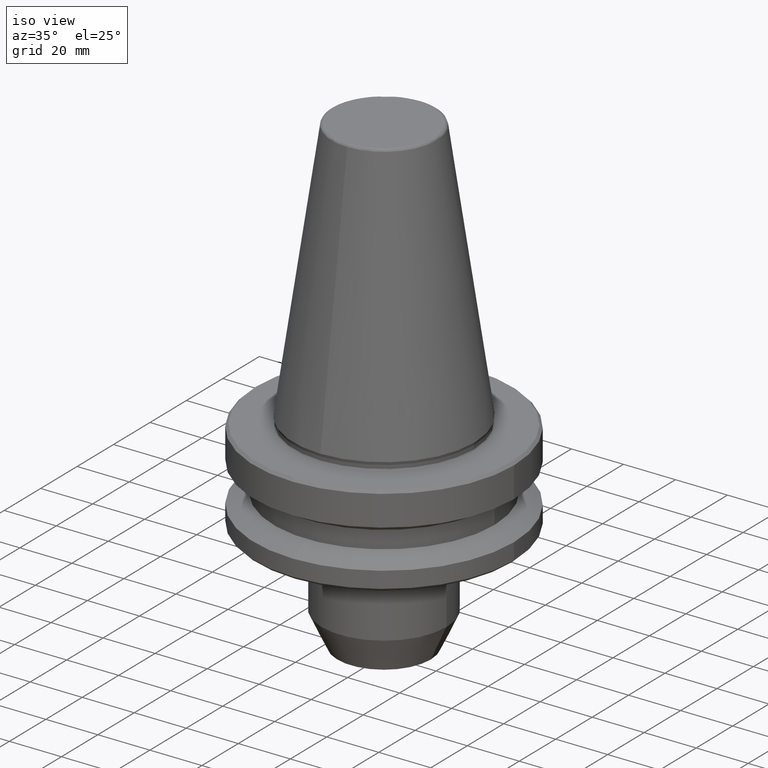
[diagram: clean part render]
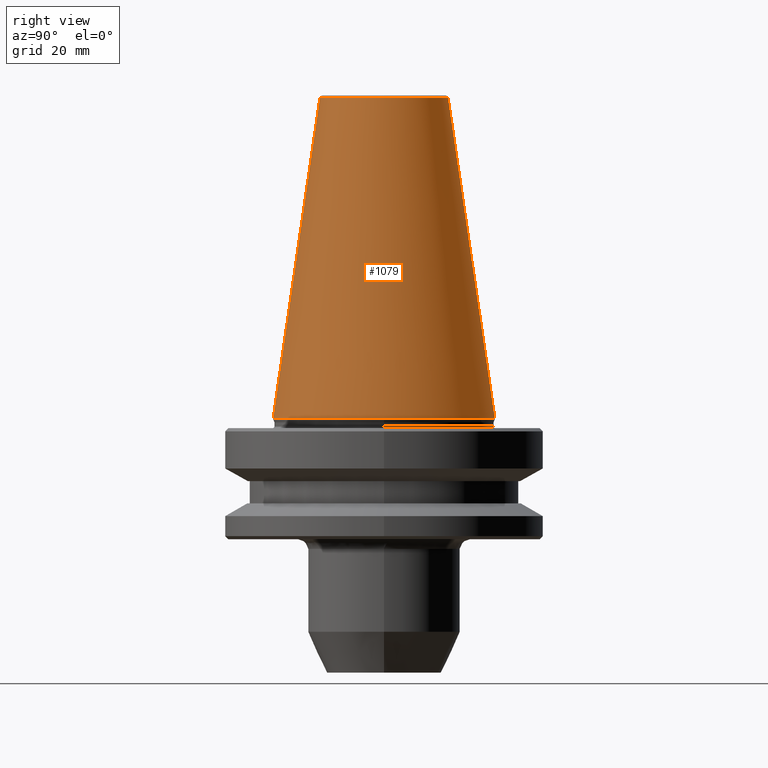
[diagram: tour spotlight — one face highlighted and labeled with its STEP entity id]
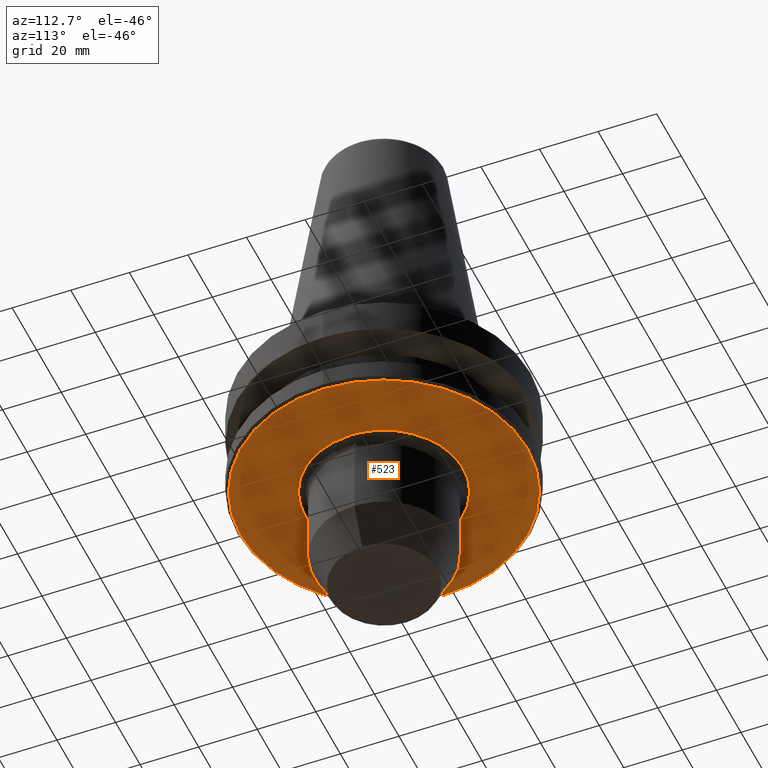
[diagram: tour spotlight — one face highlighted and labeled with its STEP entity id]
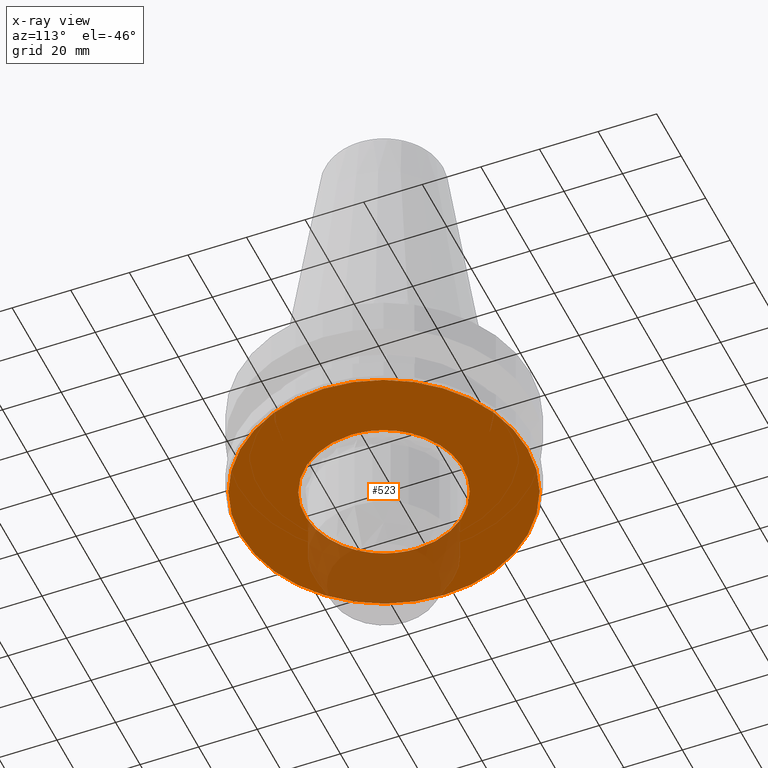
[diagram: x-ray of the same camera — body ghosted, this tour face saturated]
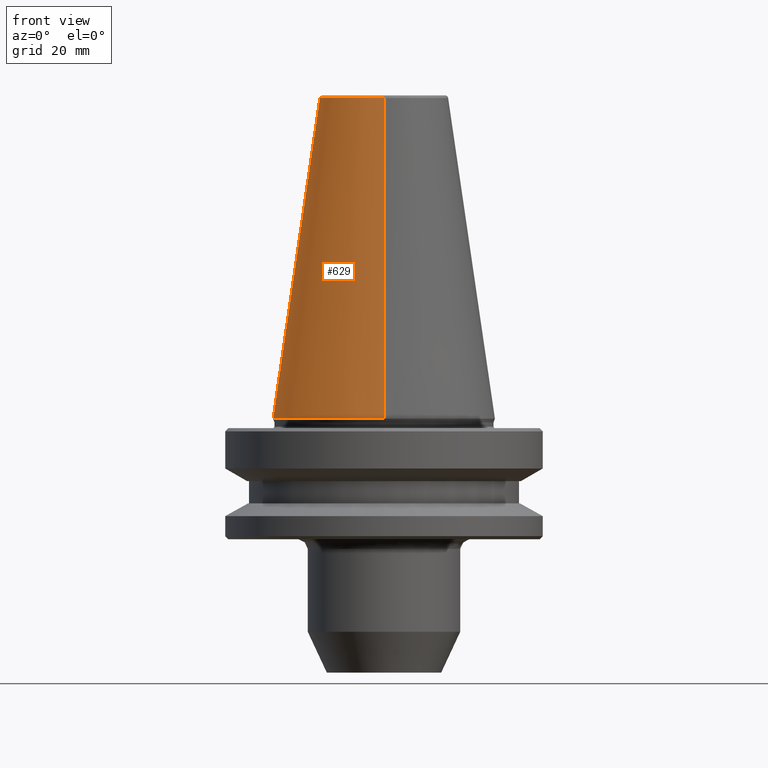
[diagram: tour spotlight — one face highlighted and labeled with its STEP entity id]
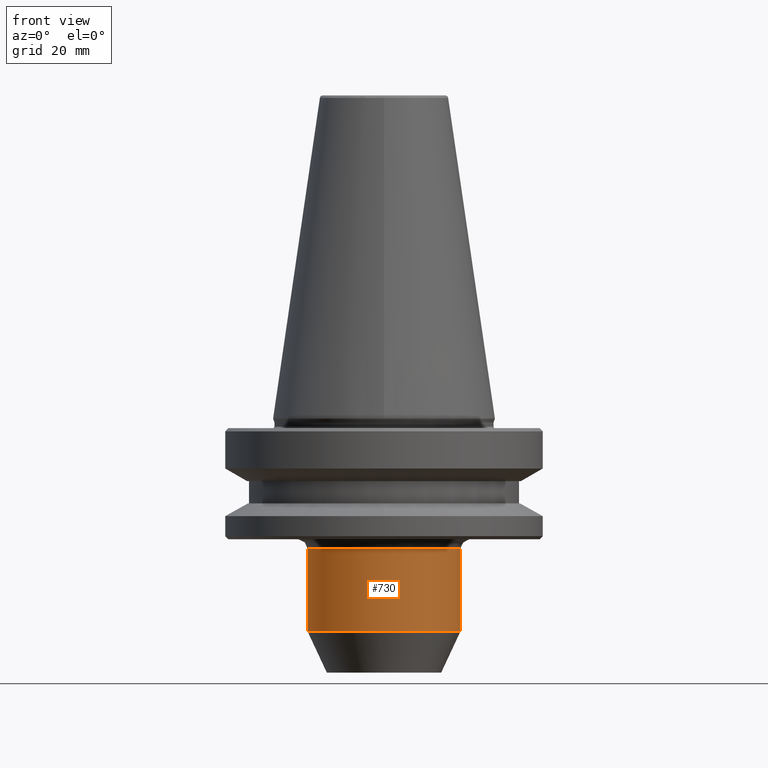
[diagram: tour spotlight — one face highlighted and labeled with its STEP entity id]
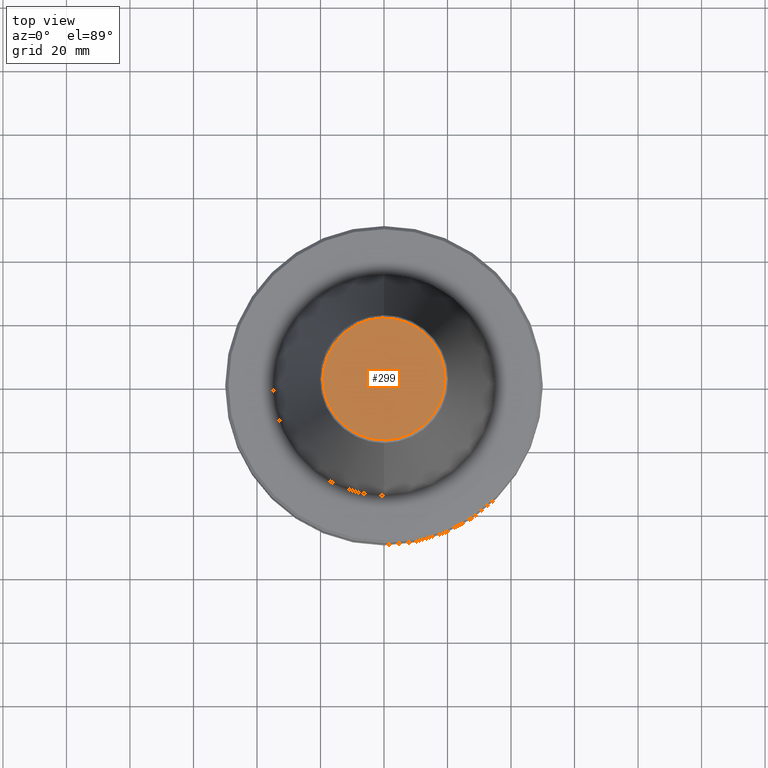
[diagram: tour spotlight — one face highlighted and labeled with its STEP entity id]
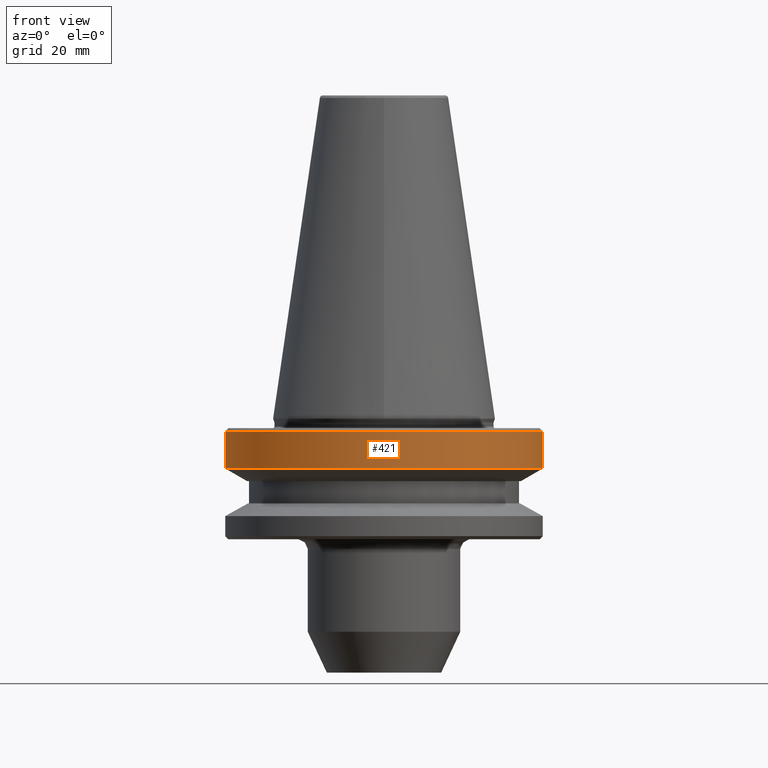
[diagram: tour spotlight — one face highlighted and labeled with its STEP entity id]
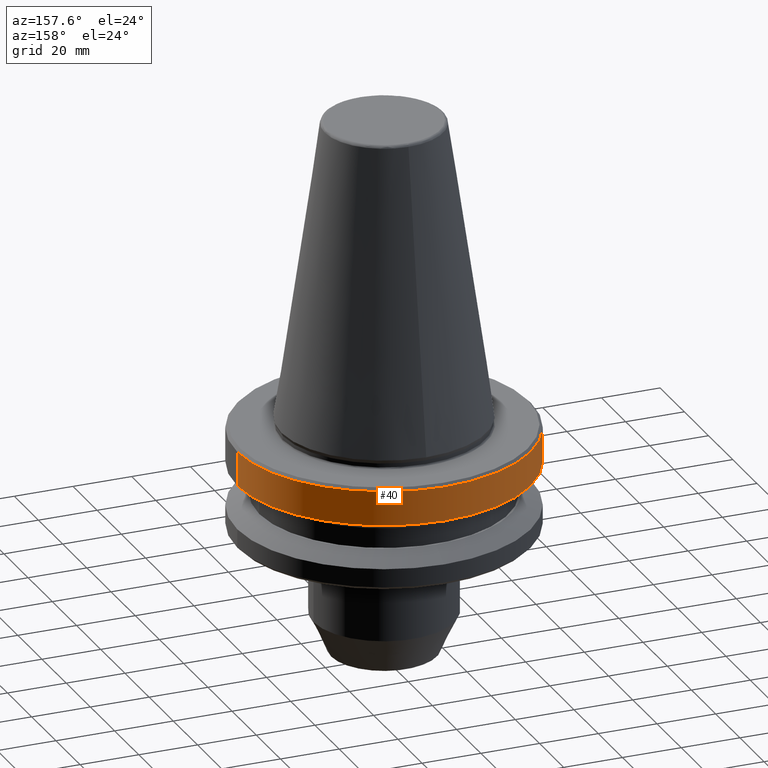
[diagram: tour spotlight — one face highlighted and labeled with its STEP entity id]
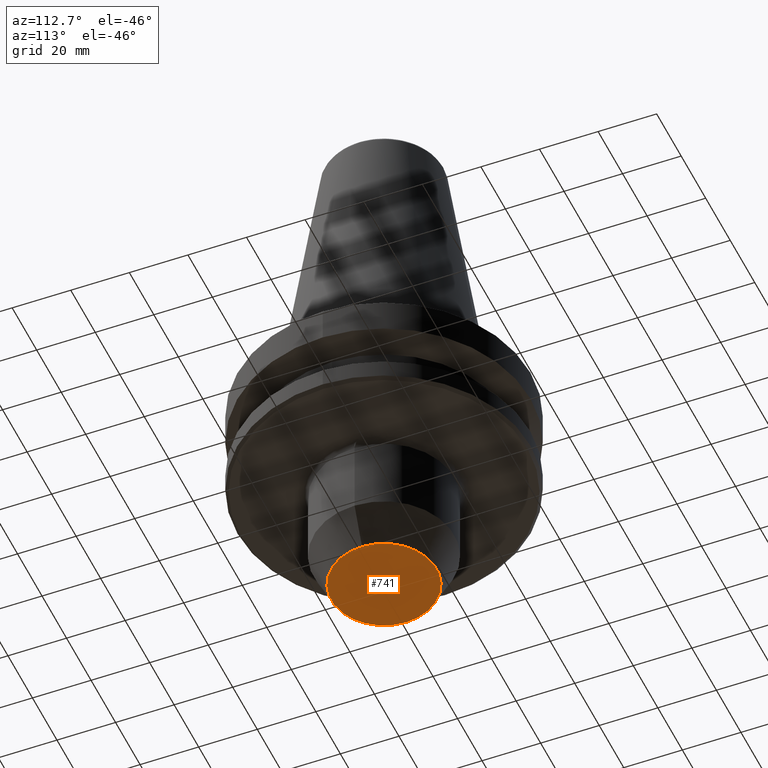
[diagram: tour spotlight — one face highlighted and labeled with its STEP entity id]
A machine part: a face-by-face anatomy tour. The part has 36 B-rep faces; the first image is the clean iso view, then the 8 largest visible faces are spotlighted one at a time (largest first), each with its STEP entity span.

Face 1 — right view, entity #1079. In plain terms, the highlighted conical surface has half-angle 8.297 deg.
Definition (entity closure, byte-faithful):
#10 = AXIS2_PLACEMENT_3D ( 'NONE', #1312, #1203, #546 ) ;
#18 = VERTEX_POINT ( 'NONE', #1149 ) ;
#32 = AXIS2_PLACEMENT_3D ( 'NONE', #498, #495, #493 ) ;
#70 = DIRECTION ( 'NONE',  ( 1.767266086135278000E-017, -0.1443082272673000500, -0.9895327864921754600 ) ) ;
#71 = ORIENTED_EDGE ( 'NONE', *, *, #161, .T. ) ;
#81 = DIRECTION ( 'NONE',  ( -0.0000000000000000000, -0.0000000000000000000, 1.000000000000000000 ) ) ;
#86 = EDGE_CURVE ( 'NONE', #1277, #1318, #1330, .T. ) ;
#93 = EDGE_CURVE ( 'NONE', #1282, #1182, #278, .T. ) ;
#122 = ORIENTED_EDGE ( 'NONE', *, *, #976, .T. ) ;
#161 = EDGE_CURVE ( 'NONE', #18, #1277, #1290, .T. ) ;
#278 = CIRCLE ( 'NONE', #531, 34.92499999999999700 ) ;
#283 = CARTESIAN_POINT ( 'NONE',  ( 4.277078946022130900E-015, -34.92499999999999700, -1.235024670767087800E-014 ) ) ;
#322 = ORIENTED_EDGE ( 'NONE', *, *, #1271, .F. ) ;
#378 = CIRCLE ( 'NONE', #32, 34.92499999999999700 ) ;
#389 = AXIS2_PLACEMENT_3D ( 'NONE', #820, #818, #815 ) ;
#434 = CARTESIAN_POINT ( 'NONE',  ( 4.277078946022130900E-015, -34.92499999999999700, 0.0000000000000000000 ) ) ;
#491 = CARTESIAN_POINT ( 'NONE',  ( 34.92499999999999700, 0.0000000000000000000, 0.0000000000000000000 ) ) ;
#493 = DIRECTION ( 'NONE',  ( -1.000000000000000000, 0.0000000000000000000, -3.611427007686981100E-016 ) ) ;
#495 = DIRECTION ( 'NONE',  ( -0.0000000000000000000, -0.0000000000000000000, 1.000000000000000000 ) ) ;
#498 = CARTESIAN_POINT ( 'NONE',  ( 0.0000000000000000000, 0.0000000000000000000, 0.0000000000000000000 ) ) ;
#506 = CARTESIAN_POINT ( 'NONE',  ( 3.375666405914009500E-015, -20.20381605152244500, 100.9443082272672700 ) ) ;
#531 = AXIS2_PLACEMENT_3D ( 'NONE', #685, #81, #1169 ) ;
#546 = DIRECTION ( 'NONE',  ( -1.000000000000000000, 0.0000000000000000000, 0.0000000000000000000 ) ) ;
#547 = DIRECTION ( 'NONE',  ( 0.0000000000000000000, 0.1443082272673000500, -0.9895327864921754600 ) ) ;
#556 = CARTESIAN_POINT ( 'NONE',  ( 0.0000000000000000000, 34.92499999999999700, -1.235024670767087400E-014 ) ) ;
#620 = CARTESIAN_POINT ( 'NONE',  ( 0.0000000000000000000, 34.92499999999999700, 0.0000000000000000000 ) ) ;
#623 = EDGE_LOOP ( 'NONE', ( #122, #71, #1170, #1007, #1331, #322 ) ) ;
#685 = CARTESIAN_POINT ( 'NONE',  ( 0.0000000000000000000, 0.0000000000000000000, 0.0000000000000000000 ) ) ;
#754 = CARTESIAN_POINT ( 'NONE',  ( 0.0000000000000000000, 20.20381605152244500, 100.9443082272672700 ) ) ;
#767 = DIRECTION ( 'NONE',  ( 0.0000000000000000000, 1.000000000000000000, 4.411578970679424000E-032 ) ) ;
#768 = CARTESIAN_POINT ( 'NONE',  ( 0.0000000000000000000, 0.0000000000000000000, -1.235024670767087600E-014 ) ) ;
#781 = DIRECTION ( 'NONE',  ( 0.0000000000000000000, 2.205789485339712300E-032, -1.000000000000000000 ) ) ;
#815 = DIRECTION ( 'NONE',  ( -1.000000000000000000, 0.0000000000000000000, 0.0000000000000000000 ) ) ;
#818 = DIRECTION ( 'NONE',  ( 0.0000000000000000000, 0.0000000000000000000, -1.000000000000000000 ) ) ;
#820 = CARTESIAN_POINT ( 'NONE',  ( 0.0000000000000000000, 0.0000000000000000000, 100.9443082272672700 ) ) ;
#934 = VECTOR ( 'NONE', #547, 1000.000000000000000 ) ;
#952 = CONICAL_SURFACE ( 'NONE', #1146, 34.92499999999999700, 0.1448138465474120300 ) ;
#967 = LINE ( 'NONE', #556, #934 ) ;
#976 = EDGE_CURVE ( 'NONE', #1081, #18, #1051, .T. ) ;
#1007 = ORIENTED_EDGE ( 'NONE', *, *, #1270, .T. ) ;
#1028 = VECTOR ( 'NONE', #70, 1000.000000000000000 ) ;
#1051 = CIRCLE ( 'NONE', #389, 20.20381605152244500 ) ;
#1079 = ADVANCED_FACE ( 'NONE', ( #1296 ), #952, .T. ) ;
#1081 = VERTEX_POINT ( 'NONE', #754 ) ;
#1146 = AXIS2_PLACEMENT_3D ( 'NONE', #768, #781, #767 ) ;
#1149 = CARTESIAN_POINT ( 'NONE',  ( 20.20381605152244500, 0.0000000000000000000, 100.9443082272672700 ) ) ;
#1169 = DIRECTION ( 'NONE',  ( -1.000000000000000000, 0.0000000000000000000, -3.611427007686981100E-016 ) ) ;
#1170 = ORIENTED_EDGE ( 'NONE', *, *, #86, .T. ) ;
#1182 = VERTEX_POINT ( 'NONE', #620 ) ;
#1203 = DIRECTION ( 'NONE',  ( 0.0000000000000000000, 0.0000000000000000000, -1.000000000000000000 ) ) ;
#1270 = EDGE_CURVE ( 'NONE', #1318, #1282, #378, .T. ) ;
#1271 = EDGE_CURVE ( 'NONE', #1081, #1182, #967, .T. ) ;
#1277 = VERTEX_POINT ( 'NONE', #506 ) ;
#1282 = VERTEX_POINT ( 'NONE', #491 ) ;
#1290 = CIRCLE ( 'NONE', #10, 20.20381605152244500 ) ;
#1296 = FACE_OUTER_BOUND ( 'NONE', #623, .T. ) ;
#1312 = CARTESIAN_POINT ( 'NONE',  ( 0.0000000000000000000, 0.0000000000000000000, 100.9443082272672700 ) ) ;
#1318 = VERTEX_POINT ( 'NONE', #434 ) ;
#1330 = LINE ( 'NONE', #283, #1028 ) ;
#1331 = ORIENTED_EDGE ( 'NONE', *, *, #93, .T. ) ;

Face 2 — auxiliary view, entity #523. An x-ray twin of the same camera follows (body ghosted, this face saturated) — the face is partly hidden behind the body. In plain terms, the highlighted planar face has unit normal (0, 0, 1).
Definition (entity closure, byte-faithful):
#35 =( BOUNDED_CURVE ( )  B_SPLINE_CURVE ( 3, ( #942, #473, #987, #1055 ),
 .UNSPECIFIED., .F., .F. ) 
 B_SPLINE_CURVE_WITH_KNOTS ( ( 4, 4 ),
 ( 0.0000000000000000000, 1.000000000000000000 ),
 .UNSPECIFIED. ) 
 CURVE ( )  GEOMETRIC_REPRESENTATION_ITEM ( )  RATIONAL_B_SPLINE_CURVE ( ( 1.000000000000000000, 0.3333333333333333700, 0.3333333333333333700, 1.000000000000000000 ) ) 
 REPRESENTATION_ITEM ( '' )  );
#48 = EDGE_CURVE ( 'NONE', #878, #750, #35, .T. ) ;
#127 = AXIS2_PLACEMENT_3D ( 'NONE', #940, #280, #1063 ) ;
#188 = ORIENTED_EDGE ( 'NONE', *, *, #48, .F. ) ;
#266 = EDGE_CURVE ( 'NONE', #828, #1082, #682, .T. ) ;
#280 = DIRECTION ( 'NONE',  ( 0.0000000000000000000, -0.0000000000000000000, 1.000000000000000000 ) ) ;
#419 = EDGE_LOOP ( 'NONE', ( #188, #935 ) ) ;
#431 = ORIENTED_EDGE ( 'NONE', *, *, #1083, .F. ) ;
#473 = CARTESIAN_POINT ( 'NONE',  ( 27.00000000000000400, -53.99999999999999300, -38.00000000000000700 ) ) ;
#523 = ADVANCED_FACE ( 'NONE', ( #1311, #945 ), #1342, .F. ) ;
#682 = CIRCLE ( 'NONE', #127, 49.00000000000000000 ) ;
#725 = EDGE_CURVE ( 'NONE', #750, #878, #971, .T. ) ;
#729 = DIRECTION ( 'NONE',  ( 1.000000000000000000, 0.0000000000000000000, 0.0000000000000000000 ) ) ;
#735 = DIRECTION ( 'NONE',  ( 0.0000000000000000000, -0.0000000000000000000, 1.000000000000000000 ) ) ;
#744 = CARTESIAN_POINT ( 'NONE',  ( 0.0000000000000000000, 0.0000000000000000000, -38.00000000000002100 ) ) ;
#750 = VERTEX_POINT ( 'NONE', #1091 ) ;
#752 = CARTESIAN_POINT ( 'NONE',  ( 49.00000000000000000, 0.0000000000000000000, -38.00000000000002100 ) ) ;
#828 = VERTEX_POINT ( 'NONE', #955 ) ;
#878 = VERTEX_POINT ( 'NONE', #884 ) ;
#884 = CARTESIAN_POINT ( 'NONE',  ( 27.00000000000000400, 0.0000000000000000000, -38.00000000000000700 ) ) ;
#935 = ORIENTED_EDGE ( 'NONE', *, *, #725, .F. ) ;
#940 = CARTESIAN_POINT ( 'NONE',  ( 0.0000000000000000000, 0.0000000000000000000, -38.00000000000002100 ) ) ;
#942 = CARTESIAN_POINT ( 'NONE',  ( 27.00000000000000400, 0.0000000000000000000, -38.00000000000000700 ) ) ;
#945 = FACE_BOUND ( 'NONE', #419, .T. ) ;
#955 = CARTESIAN_POINT ( 'NONE',  ( -49.00000000000000000, 6.062001655779398500E-015, -38.00000000000002100 ) ) ;
#971 =( BOUNDED_CURVE ( )  B_SPLINE_CURVE ( 3, ( #1070, #1044, #1041, #1120 ),
 .UNSPECIFIED., .F., .T. ) 
 B_SPLINE_CURVE_WITH_KNOTS ( ( 4, 4 ),
 ( 0.0000000000000000000, 1.000000000000000000 ),
 .UNSPECIFIED. ) 
 CURVE ( )  GEOMETRIC_REPRESENTATION_ITEM ( )  RATIONAL_B_SPLINE_CURVE ( ( 1.000000000000000000, 0.3333333333333333700, 0.3333333333333333700, 1.000000000000000000 ) ) 
 REPRESENTATION_ITEM ( '' )  );
#987 = CARTESIAN_POINT ( 'NONE',  ( -27.00000000000000700, -53.99999999999999300, -38.00000000000000700 ) ) ;
#992 = CIRCLE ( 'NONE', #1196, 49.00000000000000000 ) ;
#1041 = CARTESIAN_POINT ( 'NONE',  ( 27.00000000000000400, 53.99999999999999300, -38.00000000000000700 ) ) ;
#1044 = CARTESIAN_POINT ( 'NONE',  ( -26.99999999999999600, 53.99999999999999300, -38.00000000000000700 ) ) ;
#1055 = CARTESIAN_POINT ( 'NONE',  ( -27.00000000000000400, 1.983927814618711800E-015, -38.00000000000000700 ) ) ;
#1063 = DIRECTION ( 'NONE',  ( 1.000000000000000000, 0.0000000000000000000, 0.0000000000000000000 ) ) ;
#1070 = CARTESIAN_POINT ( 'NONE',  ( -27.00000000000000400, 1.983927814618711800E-015, -38.00000000000000700 ) ) ;
#1082 = VERTEX_POINT ( 'NONE', #752 ) ;
#1083 = EDGE_CURVE ( 'NONE', #1082, #828, #992, .T. ) ;
#1091 = CARTESIAN_POINT ( 'NONE',  ( -27.00000000000000400, 1.983927814618711800E-015, -38.00000000000000700 ) ) ;
#1116 = ORIENTED_EDGE ( 'NONE', *, *, #266, .F. ) ;
#1120 = CARTESIAN_POINT ( 'NONE',  ( 27.00000000000000400, 0.0000000000000000000, -38.00000000000000700 ) ) ;
#1196 = AXIS2_PLACEMENT_3D ( 'NONE', #744, #735, #729 ) ;
#1238 = DIRECTION ( 'NONE',  ( 0.0000000000000000000, 0.0000000000000000000, 1.000000000000000000 ) ) ;
#1281 = EDGE_LOOP ( 'NONE', ( #431, #1116 ) ) ;
#1311 = FACE_OUTER_BOUND ( 'NONE', #1281, .T. ) ;
#1316 = DIRECTION ( 'NONE',  ( 1.000000000000000000, 0.0000000000000000000, -0.0000000000000000000 ) ) ;
#1319 = CARTESIAN_POINT ( 'NONE',  ( 0.0000000000000000000, 49.00000000000000000, -38.00000000000000700 ) ) ;
#1342 = PLANE ( 'NONE',  #1359 ) ;
#1359 = AXIS2_PLACEMENT_3D ( 'NONE', #1319, #1238, #1316 ) ;

Face 3 — front view, entity #629. In plain terms, the highlighted conical surface has half-angle 8.297 deg.
Definition (entity closure, byte-faithful):
#23 = DIRECTION ( 'NONE',  ( -0.0000000000000000000, -0.0000000000000000000, 1.000000000000000000 ) ) ;
#36 = EDGE_CURVE ( 'NONE', #154, #1318, #1092, .T. ) ;
#70 = DIRECTION ( 'NONE',  ( 1.767266086135278000E-017, -0.1443082272673000500, -0.9895327864921754600 ) ) ;
#86 = EDGE_CURVE ( 'NONE', #1277, #1318, #1330, .T. ) ;
#130 = FACE_OUTER_BOUND ( 'NONE', #1099, .T. ) ;
#132 = ORIENTED_EDGE ( 'NONE', *, *, #595, .T. ) ;
#154 = VERTEX_POINT ( 'NONE', #914 ) ;
#170 = CONICAL_SURFACE ( 'NONE', #335, 34.92499999999999700, 0.1448138465474120300 ) ;
#198 = CARTESIAN_POINT ( 'NONE',  ( 0.0000000000000000000, 0.0000000000000000000, 100.9443082272672700 ) ) ;
#283 = CARTESIAN_POINT ( 'NONE',  ( 4.277078946022130900E-015, -34.92499999999999700, -1.235024670767087800E-014 ) ) ;
#284 = DIRECTION ( 'NONE',  ( -1.000000000000000000, 0.0000000000000000000, 0.0000000000000000000 ) ) ;
#287 = EDGE_CURVE ( 'NONE', #1298, #1081, #1288, .T. ) ;
#328 = DIRECTION ( 'NONE',  ( -1.000000000000000000, 0.0000000000000000000, -3.611427007686981100E-016 ) ) ;
#335 = AXIS2_PLACEMENT_3D ( 'NONE', #1165, #1000, #1052 ) ;
#434 = CARTESIAN_POINT ( 'NONE',  ( 4.277078946022130900E-015, -34.92499999999999700, 0.0000000000000000000 ) ) ;
#460 = CARTESIAN_POINT ( 'NONE',  ( -20.20381605152244500, 2.474253865805887700E-015, 100.9443082272672700 ) ) ;
#501 = ORIENTED_EDGE ( 'NONE', *, *, #1271, .T. ) ;
#506 = CARTESIAN_POINT ( 'NONE',  ( 3.375666405914009500E-015, -20.20381605152244500, 100.9443082272672700 ) ) ;
#547 = DIRECTION ( 'NONE',  ( 0.0000000000000000000, 0.1443082272673000500, -0.9895327864921754600 ) ) ;
#556 = CARTESIAN_POINT ( 'NONE',  ( 0.0000000000000000000, 34.92499999999999700, -1.235024670767087400E-014 ) ) ;
#595 = EDGE_CURVE ( 'NONE', #1182, #154, #1126, .T. ) ;
#620 = CARTESIAN_POINT ( 'NONE',  ( 0.0000000000000000000, 34.92499999999999700, 0.0000000000000000000 ) ) ;
#622 = CARTESIAN_POINT ( 'NONE',  ( 0.0000000000000000000, 0.0000000000000000000, 0.0000000000000000000 ) ) ;
#629 = ADVANCED_FACE ( 'NONE', ( #130 ), #170, .T. ) ;
#704 = CIRCLE ( 'NONE', #837, 20.20381605152244500 ) ;
#754 = CARTESIAN_POINT ( 'NONE',  ( 0.0000000000000000000, 20.20381605152244500, 100.9443082272672700 ) ) ;
#770 = DIRECTION ( 'NONE',  ( -1.000000000000000000, 0.0000000000000000000, 0.0000000000000000000 ) ) ;
#771 = DIRECTION ( 'NONE',  ( 0.0000000000000000000, 0.0000000000000000000, -1.000000000000000000 ) ) ;
#773 = CARTESIAN_POINT ( 'NONE',  ( 0.0000000000000000000, 0.0000000000000000000, 100.9443082272672700 ) ) ;
#777 = ORIENTED_EDGE ( 'NONE', *, *, #86, .F. ) ;
#789 = ORIENTED_EDGE ( 'NONE', *, *, #1030, .T. ) ;
#837 = AXIS2_PLACEMENT_3D ( 'NONE', #773, #771, #770 ) ;
#914 = CARTESIAN_POINT ( 'NONE',  ( -34.92499999999999700, 4.277078946022130900E-015, 0.0000000000000000000 ) ) ;
#916 = AXIS2_PLACEMENT_3D ( 'NONE', #622, #23, #328 ) ;
#934 = VECTOR ( 'NONE', #547, 1000.000000000000000 ) ;
#943 = DIRECTION ( 'NONE',  ( 0.0000000000000000000, 0.0000000000000000000, -1.000000000000000000 ) ) ;
#967 = LINE ( 'NONE', #556, #934 ) ;
#973 = ORIENTED_EDGE ( 'NONE', *, *, #36, .T. ) ;
#1000 = DIRECTION ( 'NONE',  ( 0.0000000000000000000, 2.205789485339712300E-032, -1.000000000000000000 ) ) ;
#1021 = AXIS2_PLACEMENT_3D ( 'NONE', #198, #943, #284 ) ;
#1028 = VECTOR ( 'NONE', #70, 1000.000000000000000 ) ;
#1030 = EDGE_CURVE ( 'NONE', #1277, #1298, #704, .T. ) ;
#1035 = AXIS2_PLACEMENT_3D ( 'NONE', #1189, #1172, #1178 ) ;
#1052 = DIRECTION ( 'NONE',  ( 0.0000000000000000000, 1.000000000000000000, 4.411578970679424000E-032 ) ) ;
#1081 = VERTEX_POINT ( 'NONE', #754 ) ;
#1092 = CIRCLE ( 'NONE', #916, 34.92499999999999700 ) ;
#1099 = EDGE_LOOP ( 'NONE', ( #777, #789, #1267, #501, #132, #973 ) ) ;
#1126 = CIRCLE ( 'NONE', #1035, 34.92499999999999700 ) ;
#1165 = CARTESIAN_POINT ( 'NONE',  ( 0.0000000000000000000, 0.0000000000000000000, -1.235024670767087600E-014 ) ) ;
#1172 = DIRECTION ( 'NONE',  ( -0.0000000000000000000, -0.0000000000000000000, 1.000000000000000000 ) ) ;
#1178 = DIRECTION ( 'NONE',  ( -1.000000000000000000, -8.881784197001252300E-016, -3.611427007686981100E-016 ) ) ;
#1182 = VERTEX_POINT ( 'NONE', #620 ) ;
#1189 = CARTESIAN_POINT ( 'NONE',  ( 0.0000000000000000000, 0.0000000000000000000, 0.0000000000000000000 ) ) ;
#1267 = ORIENTED_EDGE ( 'NONE', *, *, #287, .T. ) ;
#1271 = EDGE_CURVE ( 'NONE', #1081, #1182, #967, .T. ) ;
#1277 = VERTEX_POINT ( 'NONE', #506 ) ;
#1288 = CIRCLE ( 'NONE', #1021, 20.20381605152244500 ) ;
#1298 = VERTEX_POINT ( 'NONE', #460 ) ;
#1318 = VERTEX_POINT ( 'NONE', #434 ) ;
#1330 = LINE ( 'NONE', #283, #1028 ) ;

Face 4 — front view, entity #730. In plain terms, the highlighted cylindrical surface (partial cylindrical patch) has radius 24 mm, axis along (0, 0, 1).
Definition (entity closure, byte-faithful):
#29 = VERTEX_POINT ( 'NONE', #1073 ) ;
#45 = EDGE_CURVE ( 'NONE', #69, #29, #1365, .T. ) ;
#69 = VERTEX_POINT ( 'NONE', #388 ) ;
#137 = LINE ( 'NONE', #442, #1195 ) ;
#211 = FACE_OUTER_BOUND ( 'NONE', #249, .T. ) ;
#245 = DIRECTION ( 'NONE',  ( -0.0000000000000000000, -0.0000000000000000000, -1.000000000000000000 ) ) ;
#249 = EDGE_LOOP ( 'NONE', ( #778, #1049, #379, #736 ) ) ;
#271 = CARTESIAN_POINT ( 'NONE',  ( 0.0000000000000000000, 0.0000000000000000000, -41.00000000000000700 ) ) ;
#352 = AXIS2_PLACEMENT_3D ( 'NONE', #1045, #369, #1154 ) ;
#369 = DIRECTION ( 'NONE',  ( 0.0000000000000000000, 0.0000000000000000000, 1.000000000000000000 ) ) ;
#374 = CYLINDRICAL_SURFACE ( 'NONE', #794, 24.00000000000000000 ) ;
#379 = ORIENTED_EDGE ( 'NONE', *, *, #764, .T. ) ;
#388 = CARTESIAN_POINT ( 'NONE',  ( -24.00000000000000000, 2.939152317953647900E-015, -67.13295847694243400 ) ) ;
#440 = DIRECTION ( 'NONE',  ( 0.0000000000000000000, 0.0000000000000000000, 1.000000000000000000 ) ) ;
#442 = CARTESIAN_POINT ( 'NONE',  ( -24.00000000000000000, 2.939152317953647900E-015, 0.0000000000000000000 ) ) ;
#508 = VERTEX_POINT ( 'NONE', #1362 ) ;
#516 = AXIS2_PLACEMENT_3D ( 'NONE', #271, #245, #1218 ) ;
#728 = EDGE_CURVE ( 'NONE', #508, #969, #1207, .T. ) ;
#730 = ADVANCED_FACE ( 'NONE', ( #211 ), #374, .T. ) ;
#736 = ORIENTED_EDGE ( 'NONE', *, *, #728, .T. ) ;
#764 = EDGE_CURVE ( 'NONE', #29, #508, #787, .T. ) ;
#778 = ORIENTED_EDGE ( 'NONE', *, *, #1302, .F. ) ;
#787 = LINE ( 'NONE', #1101, #927 ) ;
#794 = AXIS2_PLACEMENT_3D ( 'NONE', #1067, #1208, #1122 ) ;
#854 = CARTESIAN_POINT ( 'NONE',  ( -24.00000000000000000, 2.939152317953647900E-015, -41.00000000000000700 ) ) ;
#927 = VECTOR ( 'NONE', #1102, 1000.000000000000000 ) ;
#969 = VERTEX_POINT ( 'NONE', #854 ) ;
#1045 = CARTESIAN_POINT ( 'NONE',  ( 0.0000000000000000000, 0.0000000000000000000, -67.13295847694243400 ) ) ;
#1049 = ORIENTED_EDGE ( 'NONE', *, *, #45, .T. ) ;
#1067 = CARTESIAN_POINT ( 'NONE',  ( 0.0000000000000000000, 0.0000000000000000000, 0.0000000000000000000 ) ) ;
#1073 = CARTESIAN_POINT ( 'NONE',  ( 24.00000000000000000, 0.0000000000000000000, -67.13295847694243400 ) ) ;
#1101 = CARTESIAN_POINT ( 'NONE',  ( 24.00000000000000000, 0.0000000000000000000, 0.0000000000000000000 ) ) ;
#1102 = DIRECTION ( 'NONE',  ( 0.0000000000000000000, 0.0000000000000000000, 1.000000000000000000 ) ) ;
#1122 = DIRECTION ( 'NONE',  ( 1.000000000000000000, 0.0000000000000000000, 0.0000000000000000000 ) ) ;
#1154 = DIRECTION ( 'NONE',  ( 1.000000000000000000, 0.0000000000000000000, 0.0000000000000000000 ) ) ;
#1195 = VECTOR ( 'NONE', #440, 1000.000000000000000 ) ;
#1207 = CIRCLE ( 'NONE', #516, 24.00000000000000000 ) ;
#1208 = DIRECTION ( 'NONE',  ( 0.0000000000000000000, 0.0000000000000000000, 1.000000000000000000 ) ) ;
#1218 = DIRECTION ( 'NONE',  ( 1.000000000000000000, 0.0000000000000000000, 0.0000000000000000000 ) ) ;
#1302 = EDGE_CURVE ( 'NONE', #69, #969, #137, .T. ) ;
#1362 = CARTESIAN_POINT ( 'NONE',  ( 24.00000000000000000, 0.0000000000000000000, -41.00000000000000700 ) ) ;
#1365 = CIRCLE ( 'NONE', #352, 24.00000000000000000 ) ;

Face 5 — top view, entity #299. In plain terms, the highlighted planar face has unit normal (0, 0, -1).
Definition (entity closure, byte-faithful):
#9 = FACE_OUTER_BOUND ( 'NONE', #651, .T. ) ;
#51 = EDGE_CURVE ( 'NONE', #139, #124, #550, .T. ) ;
#61 = ORIENTED_EDGE ( 'NONE', *, *, #51, .F. ) ;
#124 = VERTEX_POINT ( 'NONE', #713 ) ;
#139 = VERTEX_POINT ( 'NONE', #156 ) ;
#156 = CARTESIAN_POINT ( 'NONE',  ( -19.21428326503027500, 2.377307613035567900E-015, 101.8000000000000000 ) ) ;
#195 = CARTESIAN_POINT ( 'NONE',  ( 19.21428326503027500, 38.42856653006053600, 101.8000000000000000 ) ) ;
#282 = CARTESIAN_POINT ( 'NONE',  ( -19.21428326503027500, 2.377307613035567900E-015, 101.8000000000000000 ) ) ;
#289 = CARTESIAN_POINT ( 'NONE',  ( 19.21428326503027500, -38.42856653006053600, 101.8000000000000000 ) ) ;
#299 = ADVANCED_FACE ( 'NONE', ( #9 ), #1176, .F. ) ;
#380 = EDGE_CURVE ( 'NONE', #124, #139, #923, .T. ) ;
#400 = CARTESIAN_POINT ( 'NONE',  ( -19.21428326503027900, -38.42856653006053600, 101.8000000000000000 ) ) ;
#550 =( BOUNDED_CURVE ( )  B_SPLINE_CURVE ( 3, ( #282, #941, #195, #817 ),
 .UNSPECIFIED., .F., .F. ) 
 B_SPLINE_CURVE_WITH_KNOTS ( ( 4, 4 ),
 ( 0.0000000000000000000, 1.000000000000000000 ),
 .UNSPECIFIED. ) 
 CURVE ( )  GEOMETRIC_REPRESENTATION_ITEM ( )  RATIONAL_B_SPLINE_CURVE ( ( 1.000000000000000000, 0.3333333333333333700, 0.3333333333333333700, 1.000000000000000000 ) ) 
 REPRESENTATION_ITEM ( '' )  );
#614 = DIRECTION ( 'NONE',  ( -1.000000000000000000, 0.0000000000000000000, -0.0000000000000000000 ) ) ;
#651 = EDGE_LOOP ( 'NONE', ( #1237, #61 ) ) ;
#713 = CARTESIAN_POINT ( 'NONE',  ( 19.21428326503027500, 0.0000000000000000000, 101.8000000000000000 ) ) ;
#726 = CARTESIAN_POINT ( 'NONE',  ( 19.21428326503027500, 0.0000000000000000000, 101.8000000000000000 ) ) ;
#817 = CARTESIAN_POINT ( 'NONE',  ( 19.21428326503027500, 0.0000000000000000000, 101.8000000000000000 ) ) ;
#923 =( BOUNDED_CURVE ( )  B_SPLINE_CURVE ( 3, ( #726, #289, #400, #1341 ),
 .UNSPECIFIED., .F., .F. ) 
 B_SPLINE_CURVE_WITH_KNOTS ( ( 4, 4 ),
 ( 0.0000000000000000000, 1.000000000000000000 ),
 .UNSPECIFIED. ) 
 CURVE ( )  GEOMETRIC_REPRESENTATION_ITEM ( )  RATIONAL_B_SPLINE_CURVE ( ( 1.000000000000000000, 0.3333333333333333700, 0.3333333333333333700, 1.000000000000000000 ) ) 
 REPRESENTATION_ITEM ( '' )  );
#941 = CARTESIAN_POINT ( 'NONE',  ( -19.21428326503026800, 38.42856653006053600, 101.8000000000000000 ) ) ;
#1105 = AXIS2_PLACEMENT_3D ( 'NONE', #1274, #1278, #614 ) ;
#1176 = PLANE ( 'NONE',  #1105 ) ;
#1237 = ORIENTED_EDGE ( 'NONE', *, *, #380, .F. ) ;
#1274 = CARTESIAN_POINT ( 'NONE',  ( 0.0000000000000000000, 0.0000000000000000000, 101.8000000000000000 ) ) ;
#1278 = DIRECTION ( 'NONE',  ( 0.0000000000000000000, 0.0000000000000000000, -1.000000000000000000 ) ) ;
#1341 = CARTESIAN_POINT ( 'NONE',  ( -19.21428326503027500, 2.377307613035567900E-015, 101.8000000000000000 ) ) ;

Face 6 — front view, entity #421. In plain terms, the highlighted cylindrical surface (partial cylindrical patch) has radius 50 mm, axis along (0, 0, 1).
Definition (entity closure, byte-faithful):
#85 = VERTEX_POINT ( 'NONE', #183 ) ;
#108 = VERTEX_POINT ( 'NONE', #521 ) ;
#115 = AXIS2_PLACEMENT_3D ( 'NONE', #1259, #1230, #1255 ) ;
#143 = LINE ( 'NONE', #1059, #236 ) ;
#155 = VECTOR ( 'NONE', #836, 1000.000000000000000 ) ;
#157 = ORIENTED_EDGE ( 'NONE', *, *, #163, .T. ) ;
#163 = EDGE_CURVE ( 'NONE', #108, #1033, #574, .T. ) ;
#183 = CARTESIAN_POINT ( 'NONE',  ( -50.00000000000000000, 6.123233995736766100E-015, -3.999999999999989800 ) ) ;
#206 = EDGE_CURVE ( 'NONE', #85, #648, #1077, .T. ) ;
#233 = DIRECTION ( 'NONE',  ( -0.0000000000000000000, -0.0000000000000000000, 1.000000000000000000 ) ) ;
#236 = VECTOR ( 'NONE', #610, 1000.000000000000000 ) ;
#247 = FACE_OUTER_BOUND ( 'NONE', #1151, .T. ) ;
#273 = EDGE_CURVE ( 'NONE', #108, #85, #143, .T. ) ;
#275 = CYLINDRICAL_SURFACE ( 'NONE', #115, 50.00000000000000000 ) ;
#291 = ORIENTED_EDGE ( 'NONE', *, *, #983, .T. ) ;
#421 = ADVANCED_FACE ( 'NONE', ( #247 ), #275, .T. ) ;
#428 = AXIS2_PLACEMENT_3D ( 'NONE', #872, #871, #870 ) ;
#521 = CARTESIAN_POINT ( 'NONE',  ( -50.00000000000000000, 6.123233995736766100E-015, -15.70022000322675400 ) ) ;
#561 = ORIENTED_EDGE ( 'NONE', *, *, #273, .F. ) ;
#574 = CIRCLE ( 'NONE', #613, 50.00000000000000000 ) ;
#599 = CIRCLE ( 'NONE', #428, 50.00000000000000000 ) ;
#605 = ORIENTED_EDGE ( 'NONE', *, *, #206, .F. ) ;
#609 = DIRECTION ( 'NONE',  ( 0.0000000000000000000, 0.0000000000000000000, 1.000000000000000000 ) ) ;
#610 = DIRECTION ( 'NONE',  ( 0.0000000000000000000, 0.0000000000000000000, 1.000000000000000000 ) ) ;
#613 = AXIS2_PLACEMENT_3D ( 'NONE', #1104, #609, #1206 ) ;
#648 = VERTEX_POINT ( 'NONE', #1127 ) ;
#650 = LINE ( 'NONE', #834, #155 ) ;
#679 = CARTESIAN_POINT ( 'NONE',  ( 50.00000000000000000, 0.0000000000000000000, -3.999999999999989800 ) ) ;
#784 = CARTESIAN_POINT ( 'NONE',  ( 50.00000000000000000, 0.0000000000000000000, -15.70022000322675400 ) ) ;
#834 = CARTESIAN_POINT ( 'NONE',  ( 50.00000000000000000, 0.0000000000000000000, 124.5046326327850600 ) ) ;
#836 = DIRECTION ( 'NONE',  ( 0.0000000000000000000, 0.0000000000000000000, 1.000000000000000000 ) ) ;
#870 = DIRECTION ( 'NONE',  ( -1.000000000000000000, 0.0000000000000000000, -3.469446951953614200E-017 ) ) ;
#871 = DIRECTION ( 'NONE',  ( -0.0000000000000000000, -0.0000000000000000000, 1.000000000000000000 ) ) ;
#872 = CARTESIAN_POINT ( 'NONE',  ( 0.0000000000000000000, 0.0000000000000000000, -3.999999999999989800 ) ) ;
#880 = CARTESIAN_POINT ( 'NONE',  ( 0.0000000000000000000, 0.0000000000000000000, -3.999999999999989800 ) ) ;
#910 = EDGE_CURVE ( 'NONE', #648, #1135, #599, .T. ) ;
#983 = EDGE_CURVE ( 'NONE', #1033, #1135, #650, .T. ) ;
#995 = DIRECTION ( 'NONE',  ( -1.000000000000000000, 0.0000000000000000000, -3.469446951953614200E-017 ) ) ;
#1033 = VERTEX_POINT ( 'NONE', #784 ) ;
#1059 = CARTESIAN_POINT ( 'NONE',  ( -50.00000000000000000, 6.123233995736766100E-015, 124.5046326327850600 ) ) ;
#1072 = ORIENTED_EDGE ( 'NONE', *, *, #910, .F. ) ;
#1077 = CIRCLE ( 'NONE', #1343, 50.00000000000000000 ) ;
#1104 = CARTESIAN_POINT ( 'NONE',  ( 0.0000000000000000000, 0.0000000000000000000, -15.70022000322675400 ) ) ;
#1127 = CARTESIAN_POINT ( 'NONE',  ( 6.123233995736766100E-015, -50.00000000000000000, -3.999999999999989800 ) ) ;
#1135 = VERTEX_POINT ( 'NONE', #679 ) ;
#1151 = EDGE_LOOP ( 'NONE', ( #561, #157, #291, #1072, #605 ) ) ;
#1206 = DIRECTION ( 'NONE',  ( 1.000000000000000000, 0.0000000000000000000, 0.0000000000000000000 ) ) ;
#1230 = DIRECTION ( 'NONE',  ( 0.0000000000000000000, 0.0000000000000000000, 1.000000000000000000 ) ) ;
#1255 = DIRECTION ( 'NONE',  ( 1.000000000000000000, 0.0000000000000000000, 0.0000000000000000000 ) ) ;
#1259 = CARTESIAN_POINT ( 'NONE',  ( 0.0000000000000000000, 0.0000000000000000000, 124.5046326327850600 ) ) ;
#1343 = AXIS2_PLACEMENT_3D ( 'NONE', #880, #233, #995 ) ;

Face 7 — auxiliary view, entity #40. In plain terms, the highlighted cylindrical surface (partial cylindrical patch) has radius 50 mm, axis along (0, 0, 1).
Definition (entity closure, byte-faithful):
#11 = FACE_OUTER_BOUND ( 'NONE', #465, .T. ) ;
#40 = ADVANCED_FACE ( 'NONE', ( #11 ), #499, .T. ) ;
#46 = CIRCLE ( 'NONE', #848, 50.00000000000000000 ) ;
#82 = CIRCLE ( 'NONE', #1143, 50.00000000000000000 ) ;
#85 = VERTEX_POINT ( 'NONE', #183 ) ;
#97 = DIRECTION ( 'NONE',  ( 1.000000000000000000, 0.0000000000000000000, 0.0000000000000000000 ) ) ;
#108 = VERTEX_POINT ( 'NONE', #521 ) ;
#143 = LINE ( 'NONE', #1059, #236 ) ;
#145 = VERTEX_POINT ( 'NONE', #667 ) ;
#155 = VECTOR ( 'NONE', #836, 1000.000000000000000 ) ;
#160 = ORIENTED_EDGE ( 'NONE', *, *, #273, .T. ) ;
#183 = CARTESIAN_POINT ( 'NONE',  ( -50.00000000000000000, 6.123233995736766100E-015, -3.999999999999989800 ) ) ;
#236 = VECTOR ( 'NONE', #610, 1000.000000000000000 ) ;
#273 = EDGE_CURVE ( 'NONE', #108, #85, #143, .T. ) ;
#397 = ORIENTED_EDGE ( 'NONE', *, *, #853, .F. ) ;
#448 = ORIENTED_EDGE ( 'NONE', *, *, #864, .F. ) ;
#450 = CARTESIAN_POINT ( 'NONE',  ( 0.0000000000000000000, 0.0000000000000000000, 124.5046326327850600 ) ) ;
#465 = EDGE_LOOP ( 'NONE', ( #1032, #160, #448, #397, #1025 ) ) ;
#499 = CYLINDRICAL_SURFACE ( 'NONE', #804, 50.00000000000000000 ) ;
#521 = CARTESIAN_POINT ( 'NONE',  ( -50.00000000000000000, 6.123233995736766100E-015, -15.70022000322675400 ) ) ;
#549 = DIRECTION ( 'NONE',  ( 1.000000000000000000, 0.0000000000000000000, 0.0000000000000000000 ) ) ;
#551 = DIRECTION ( 'NONE',  ( 0.0000000000000000000, 0.0000000000000000000, 1.000000000000000000 ) ) ;
#552 = CARTESIAN_POINT ( 'NONE',  ( 0.0000000000000000000, 0.0000000000000000000, -15.70022000322675400 ) ) ;
#571 = AXIS2_PLACEMENT_3D ( 'NONE', #552, #551, #549 ) ;
#610 = DIRECTION ( 'NONE',  ( 0.0000000000000000000, 0.0000000000000000000, 1.000000000000000000 ) ) ;
#650 = LINE ( 'NONE', #834, #155 ) ;
#667 = CARTESIAN_POINT ( 'NONE',  ( 0.0000000000000000000, 50.00000000000000000, -3.999999999999989800 ) ) ;
#679 = CARTESIAN_POINT ( 'NONE',  ( 50.00000000000000000, 0.0000000000000000000, -3.999999999999989800 ) ) ;
#784 = CARTESIAN_POINT ( 'NONE',  ( 50.00000000000000000, 0.0000000000000000000, -15.70022000322675400 ) ) ;
#804 = AXIS2_PLACEMENT_3D ( 'NONE', #450, #897, #97 ) ;
#834 = CARTESIAN_POINT ( 'NONE',  ( 50.00000000000000000, 0.0000000000000000000, 124.5046326327850600 ) ) ;
#836 = DIRECTION ( 'NONE',  ( 0.0000000000000000000, 0.0000000000000000000, 1.000000000000000000 ) ) ;
#848 = AXIS2_PLACEMENT_3D ( 'NONE', #1023, #991, #1029 ) ;
#853 = EDGE_CURVE ( 'NONE', #1135, #145, #46, .T. ) ;
#864 = EDGE_CURVE ( 'NONE', #145, #85, #82, .T. ) ;
#886 = DIRECTION ( 'NONE',  ( -1.000000000000000000, -8.881784197001252300E-016, -3.469446951953614200E-017 ) ) ;
#887 = DIRECTION ( 'NONE',  ( -0.0000000000000000000, -0.0000000000000000000, 1.000000000000000000 ) ) ;
#890 = CARTESIAN_POINT ( 'NONE',  ( 0.0000000000000000000, 0.0000000000000000000, -3.999999999999989800 ) ) ;
#897 = DIRECTION ( 'NONE',  ( 0.0000000000000000000, 0.0000000000000000000, 1.000000000000000000 ) ) ;
#983 = EDGE_CURVE ( 'NONE', #1033, #1135, #650, .T. ) ;
#991 = DIRECTION ( 'NONE',  ( -0.0000000000000000000, -0.0000000000000000000, 1.000000000000000000 ) ) ;
#1023 = CARTESIAN_POINT ( 'NONE',  ( 0.0000000000000000000, 0.0000000000000000000, -3.999999999999989800 ) ) ;
#1025 = ORIENTED_EDGE ( 'NONE', *, *, #983, .F. ) ;
#1029 = DIRECTION ( 'NONE',  ( -1.000000000000000000, 0.0000000000000000000, -3.469446951953614200E-017 ) ) ;
#1032 = ORIENTED_EDGE ( 'NONE', *, *, #1216, .T. ) ;
#1033 = VERTEX_POINT ( 'NONE', #784 ) ;
#1059 = CARTESIAN_POINT ( 'NONE',  ( -50.00000000000000000, 6.123233995736766100E-015, 124.5046326327850600 ) ) ;
#1135 = VERTEX_POINT ( 'NONE', #679 ) ;
#1143 = AXIS2_PLACEMENT_3D ( 'NONE', #890, #887, #886 ) ;
#1216 = EDGE_CURVE ( 'NONE', #1033, #108, #1293, .T. ) ;
#1293 = CIRCLE ( 'NONE', #571, 50.00000000000000000 ) ;

Face 8 — auxiliary view, entity #741. In plain terms, the highlighted planar face has unit normal (0, 0, -1).
Definition (entity closure, byte-faithful):
#54 = DIRECTION ( 'NONE',  ( 0.0000000000000000000, -0.0000000000000000000, 1.000000000000000000 ) ) ;
#60 = VERTEX_POINT ( 'NONE', #800 ) ;
#165 = EDGE_CURVE ( 'NONE', #966, #60, #373, .T. ) ;
#314 = FACE_OUTER_BOUND ( 'NONE', #1053, .T. ) ;
#373 = CIRCLE ( 'NONE', #903, 18.00000000000000000 ) ;
#453 = ORIENTED_EDGE ( 'NONE', *, *, #165, .F. ) ;
#462 = CIRCLE ( 'NONE', #1004, 18.00000000000000000 ) ;
#646 = CARTESIAN_POINT ( 'NONE',  ( 0.0000000000000000000, 0.0000000000000000000, -80.00000000000000000 ) ) ;
#741 = ADVANCED_FACE ( 'NONE', ( #314 ), #1085, .T. ) ;
#762 = DIRECTION ( 'NONE',  ( 1.000000000000000000, 0.0000000000000000000, 0.0000000000000000000 ) ) ;
#800 = CARTESIAN_POINT ( 'NONE',  ( -18.00000000000000000, 2.571758278209441300E-015, -80.00000000000000000 ) ) ;
#842 = ORIENTED_EDGE ( 'NONE', *, *, #925, .F. ) ;
#856 = CARTESIAN_POINT ( 'NONE',  ( 18.00000000000000000, 0.0000000000000000000, -80.00000000000000000 ) ) ;
#860 = DIRECTION ( 'NONE',  ( 1.000000000000000000, 0.0000000000000000000, 0.0000000000000000000 ) ) ;
#865 = DIRECTION ( 'NONE',  ( 0.0000000000000000000, -0.0000000000000000000, 1.000000000000000000 ) ) ;
#867 = CARTESIAN_POINT ( 'NONE',  ( 0.0000000000000000000, 0.0000000000000000000, -80.00000000000000000 ) ) ;
#903 = AXIS2_PLACEMENT_3D ( 'NONE', #646, #54, #762 ) ;
#925 = EDGE_CURVE ( 'NONE', #60, #966, #462, .T. ) ;
#966 = VERTEX_POINT ( 'NONE', #856 ) ;
#1004 = AXIS2_PLACEMENT_3D ( 'NONE', #867, #865, #860 ) ;
#1040 = AXIS2_PLACEMENT_3D ( 'NONE', #1078, #1354, #1090 ) ;
#1053 = EDGE_LOOP ( 'NONE', ( #453, #842 ) ) ;
#1078 = CARTESIAN_POINT ( 'NONE',  ( 0.0000000000000000000, 18.00000000000000400, -80.00000000000000000 ) ) ;
#1085 = PLANE ( 'NONE',  #1040 ) ;
#1090 = DIRECTION ( 'NONE',  ( -1.000000000000000000, 0.0000000000000000000, -0.0000000000000000000 ) ) ;
#1354 = DIRECTION ( 'NONE',  ( 0.0000000000000000000, 0.0000000000000000000, -1.000000000000000000 ) ) ;